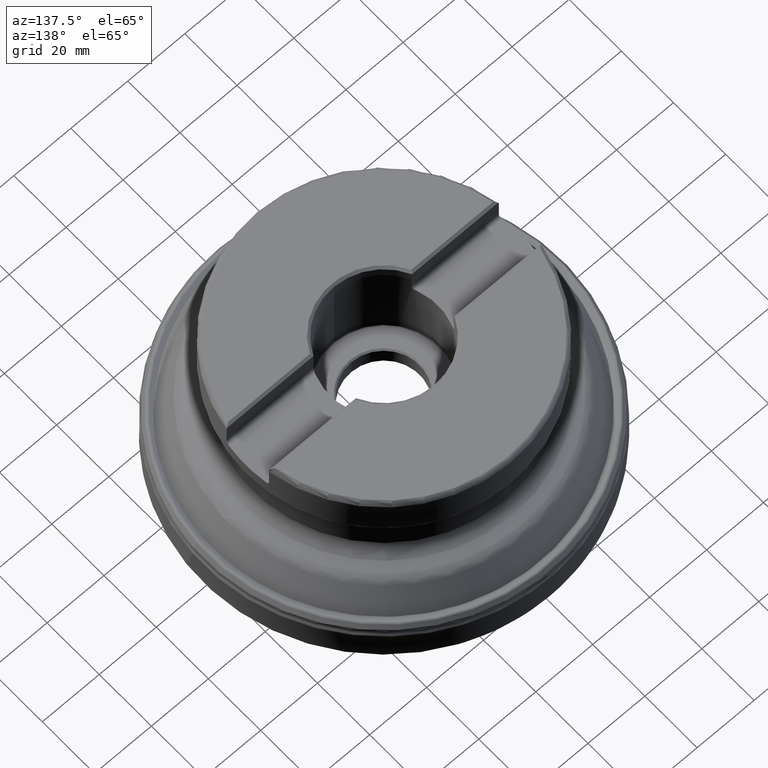
[diagram: clean part render]
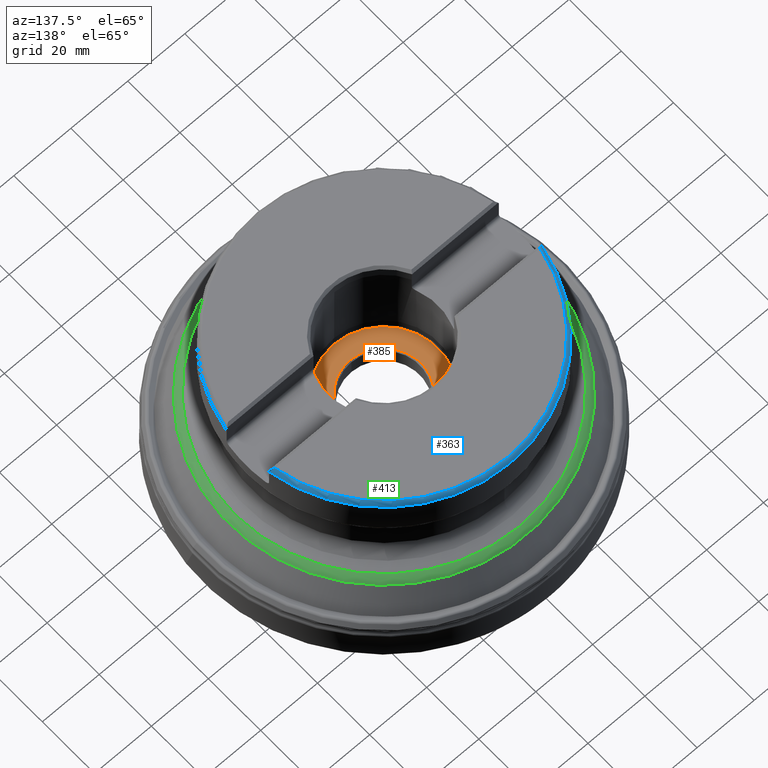
[diagram: same view with three faces highlighted in distinct colors, each labeled with its STEP entity id]
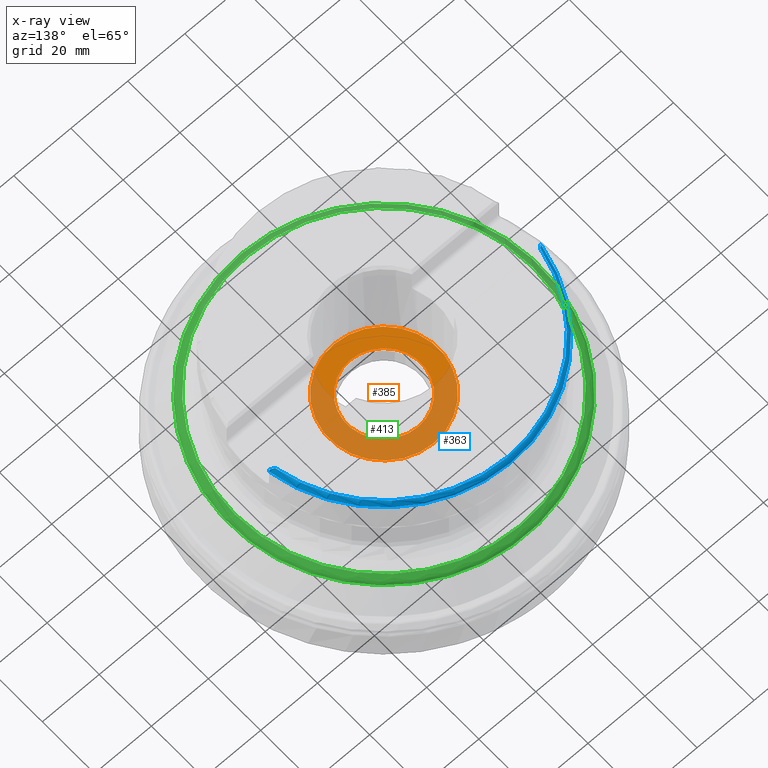
[diagram: x-ray of the same camera — body ghosted, the three highlighted faces saturated]
A machine part, auxiliary view with three faces highlighted in distinct colors.
The next image is the same camera in x-ray (body ghosted, the three faces saturated) — at least one of them is partly hidden behind the body in this view.
Their STEP definitions:

[orange] entity #385 — the highlighted planar face has unit normal (-0, -0, -1).
#176=PLANE('',#1275);
#280=FACE_BOUND('',#517,.T.);
#281=FACE_BOUND('',#518,.T.);
#385=ADVANCED_FACE('',(#280,#281),#176,.F.);
#517=EDGE_LOOP('',(#707));
#518=EDGE_LOOP('',(#708));
#707=ORIENTED_EDGE('',*,*,#1034,.T.);
#708=ORIENTED_EDGE('',*,*,#1035,.T.);
#925=VERTEX_POINT('',#2271);
#926=VERTEX_POINT('',#2273);
#1034=EDGE_CURVE('',#925,#925,#1117,.T.);
#1035=EDGE_CURVE('',#926,#926,#1118,.T.);
#1117=CIRCLE('',#1273,19.15);
#1118=CIRCLE('',#1274,13.);
#1273=AXIS2_PLACEMENT_3D('',#2270,#1478,#1479);
#1274=AXIS2_PLACEMENT_3D('',#2272,#1480,#1481);
#1275=AXIS2_PLACEMENT_3D('',#2274,#1482,#1483);
#1478=DIRECTION('',(1.17145536458252E-15,1.17145536458252E-15,1.));
#1479=DIRECTION('',(0.,-1.,1.08703298755727E-15));
#1480=DIRECTION('',(-1.17145536458252E-15,-1.17145536458252E-15,-1.));
#1481=DIRECTION('',(0.,-1.,1.06752213906265E-15));
#1482=DIRECTION('',(-1.17145536458252E-15,-1.17145536458252E-15,-1.));
#1483=DIRECTION('',(0.,-1.,1.17267306976032E-15));
#2270=CARTESIAN_POINT('',(2.85052576774595E-14,2.85052576774595E-14,24.3332));
#2271=CARTESIAN_POINT('',(2.85052576774595E-14,-19.15,24.3332));
#2272=CARTESIAN_POINT('',(2.85052576774595E-14,2.85052576774595E-14,24.3332));
#2273=CARTESIAN_POINT('',(2.85052576774595E-14,-13.,24.3332));
#2274=CARTESIAN_POINT('',(12.5,2.85052576774595E-14,24.3332));

[blue] entity #363 — the highlighted toroidal blend (fillet) surface has major radius 46.5 mm and minor (blend) radius 2 mm.
#363=ADVANCED_FACE('',(#458),#441,.T.);
#441=TOROIDAL_SURFACE('',#1213,46.5,2.);
#458=FACE_OUTER_BOUND('',#480,.T.);
#480=EDGE_LOOP('',(#619,#620,#621,#622,#623,#624));
#619=ORIENTED_EDGE('',*,*,#960,.T.);
#620=ORIENTED_EDGE('',*,*,#961,.T.);
#621=ORIENTED_EDGE('',*,*,#962,.T.);
#622=ORIENTED_EDGE('',*,*,#963,.T.);
#623=ORIENTED_EDGE('',*,*,#964,.T.);
#624=ORIENTED_EDGE('',*,*,#965,.F.);
#861=VERTEX_POINT('',#1940);
#862=VERTEX_POINT('',#1941);
#863=VERTEX_POINT('',#1949);
#864=VERTEX_POINT('',#1951);
#865=VERTEX_POINT('',#1959);
#866=VERTEX_POINT('',#1970);
#960=EDGE_CURVE('',#861,#862,#1165,.T.);
#961=EDGE_CURVE('',#862,#863,#1166,.T.);
#962=EDGE_CURVE('',#863,#864,#1077,.T.);
#963=EDGE_CURVE('',#864,#865,#1167,.T.);
#964=EDGE_CURVE('',#865,#866,#1168,.T.);
#965=EDGE_CURVE('',#861,#866,#1078,.T.);
#1077=CIRCLE('',#1211,47.3717797887081);
#1078=CIRCLE('',#1212,48.5);
#1165=B_SPLINE_CURVE_WITH_KNOTS('',3,(#1930,#1931,#1932,#1933,#1934,#1935,
#1936,#1937,#1938,#1939),.UNSPECIFIED.,.F.,.F.,(4,3,3,4),(0.,0.449401246265822,
0.831370419215527,1.),.UNSPECIFIED.);
#1166=B_SPLINE_CURVE_WITH_KNOTS('',3,(#1942,#1943,#1944,#1945,#1946,#1947,
#1948),.UNSPECIFIED.,.F.,.F.,(4,3,4),(0.,0.660782542297122,1.),
 .UNSPECIFIED.);
#1167=B_SPLINE_CURVE_WITH_KNOTS('',3,(#1952,#1953,#1954,#1955,#1956,#1957,
#1958),.UNSPECIFIED.,.F.,.F.,(4,3,4),(0.,0.668066726000924,1.),
 .UNSPECIFIED.);
#1168=B_SPLINE_CURVE_WITH_KNOTS('',3,(#1960,#1961,#1962,#1963,#1964,#1965,
#1966,#1967,#1968,#1969),.UNSPECIFIED.,.F.,.F.,(4,3,3,4),(0.,0.176331021509589,
0.820487325840416,1.),.UNSPECIFIED.);
#1211=AXIS2_PLACEMENT_3D('',#1950,#1338,#1339);
#1212=AXIS2_PLACEMENT_3D('',#1971,#1340,#1341);
#1213=AXIS2_PLACEMENT_3D('',#1972,#1342,#1343);
#1338=DIRECTION('',(0.,-1.17145536458252E-15,-1.));
#1339=DIRECTION('',(0.,-1.,1.17181899178907E-15));
#1340=DIRECTION('',(0.,-1.17145536458252E-15,-1.));
#1341=DIRECTION('',(0.,-1.,1.14455981920119E-15));
#1342=DIRECTION('',(0.,1.17145536458252E-15,1.));
#1343=DIRECTION('',(0.,-1.,1.14455981920119E-15));
#1930=CARTESIAN_POINT('',(-47.8120319584997,8.14000000000007,58.5249999999993));
#1931=CARTESIAN_POINT('',(-47.8120319584997,8.14000000000007,58.6811455727631));
#1932=CARTESIAN_POINT('',(-47.7932137818161,8.14000000000007,58.8383770359991));
#1933=CARTESIAN_POINT('',(-47.7564055792145,8.14000000000007,58.9901222043406));
#1934=CARTESIAN_POINT('',(-47.724870935823,8.14000000000007,59.1201266444327));
#1935=CARTESIAN_POINT('',(-47.6798368856416,8.14000000000007,59.2475537540405));
#1936=CARTESIAN_POINT('',(-47.6227451805058,8.14000000000007,59.3685336093147));
#1937=CARTESIAN_POINT('',(-47.5975792405139,8.14000000000007,59.4218613522997));
#1938=CARTESIAN_POINT('',(-47.5700091829628,8.14000000000007,59.4741187216278));
#1939=CARTESIAN_POINT('',(-47.5402053540369,8.14000000000007,59.5250000000011));
#1940=CARTESIAN_POINT('',(-47.8120319584997,8.14000000000007,58.5249999999993));
#1941=CARTESIAN_POINT('',(-47.5402053540369,8.14000000000007,59.5250000000011));
#1942=CARTESIAN_POINT('',(-47.5402053540369,8.14000000000007,59.5250000000011));
#1943=CARTESIAN_POINT('',(-47.3810846976297,8.35020572280937,59.7352057228104));
#1944=CARTESIAN_POINT('',(-47.1776925283572,8.54783722542941,59.9328372254293));
#1945=CARTESIAN_POINT('',(-46.9339168537292,8.71255773957184,60.0975577395718));
#1946=CARTESIAN_POINT('',(-46.8076935581482,8.79784748875042,60.1828474887503));
#1947=CARTESIAN_POINT('',(-46.6691825865688,8.87522936938679,60.2602293693867));
#1948=CARTESIAN_POINT('',(-46.5205537407914,8.94000000000007,60.325));
#1949=CARTESIAN_POINT('',(-46.5205537407914,8.94000000000007,60.325));
#1950=CARTESIAN_POINT('',(0.,7.06680448684408E-14,60.325));
#1951=CARTESIAN_POINT('',(46.5205537407914,8.94000000000007,60.325));
#1952=CARTESIAN_POINT('',(46.5205537407914,8.94000000000007,60.325));
#1953=CARTESIAN_POINT('',(46.8101208384357,8.81381020540689,60.1988102054068));
#1954=CARTESIAN_POINT('',(47.0618405703566,8.63947293801078,60.0244729380107));
#1955=CARTESIAN_POINT('',(47.2652783584163,8.44671674622115,59.8317167462211));
#1956=CARTESIAN_POINT('',(47.3676627293647,8.34970811458489,59.7347081145848));
#1957=CARTESIAN_POINT('',(47.4594216320255,8.24671902102378,59.6317190210237));
#1958=CARTESIAN_POINT('',(47.5402053540359,8.14000000000007,59.525));
#1959=CARTESIAN_POINT('',(47.5402053540359,8.14000000000007,59.525));
#1960=CARTESIAN_POINT('',(47.5402053540359,8.14000000000007,59.525));
#1961=CARTESIAN_POINT('',(47.5714053669161,8.14000000000007,59.4717351478712));
#1962=CARTESIAN_POINT('',(47.6001584602119,8.14000000000007,59.4169593822461));
#1963=CARTESIAN_POINT('',(47.6262699307819,8.14000000000007,59.361023916031));
#1964=CARTESIAN_POINT('',(47.7209341387211,8.14000000000007,59.1582361568825));
#1965=CARTESIAN_POINT('',(47.7816447019149,8.14000000000007,58.9360939923211));
#1966=CARTESIAN_POINT('',(47.8030180405361,8.14000000000007,58.7133219834838));
#1967=CARTESIAN_POINT('',(47.8090200783926,8.14000000000007,58.6507633886802));
#1968=CARTESIAN_POINT('',(47.8120319584973,8.14000000000007,58.5878458609798));
#1969=CARTESIAN_POINT('',(47.8120319584973,8.14000000000007,58.5250000000004));
#1970=CARTESIAN_POINT('',(47.8120319584973,8.14000000000007,58.5250000000004));
#1971=CARTESIAN_POINT('',(0.,6.85594252121922E-14,58.525));
#1972=CARTESIAN_POINT('',(0.,6.85594252121922E-14,58.525));

[green] entity #413 — the highlighted toroidal blend (fillet) surface has major radius 50.2368 mm and minor (blend) radius 5 mm.
#308=FACE_BOUND('',#559,.T.);
#309=FACE_BOUND('',#560,.T.);
#413=ADVANCED_FACE('',(#308,#309),#451,.T.);
#451=TOROIDAL_SURFACE('',#1307,50.2367828160623,5.);
#559=EDGE_LOOP('',(#801));
#560=EDGE_LOOP('',(#802));
#801=ORIENTED_EDGE('',*,*,#995,.F.);
#802=ORIENTED_EDGE('',*,*,#997,.F.);
#892=VERTEX_POINT('',#2097);
#894=VERTEX_POINT('',#2102);
#995=EDGE_CURVE('',#892,#892,#1096,.T.);
#997=EDGE_CURVE('',#894,#894,#1098,.T.);
#1096=CIRCLE('',#1240,54.5669098349844);
#1098=CIRCLE('',#1243,52.2704660314413);
#1240=AXIS2_PLACEMENT_3D('',#2096,#1404,#1405);
#1243=AXIS2_PLACEMENT_3D('',#2101,#1410,#1411);
#1307=AXIS2_PLACEMENT_3D('',#2344,#1554,#1555);
#1404=DIRECTION('',(0.,-1.17145536458252E-15,-1.));
#1405=DIRECTION('',(0.,-1.,1.14446732138617E-15));
#1410=DIRECTION('',(0.,1.17145536458252E-15,1.));
#1411=DIRECTION('',(0.,-1.,1.19474819867878E-15));
#1554=DIRECTION('',(0.,-1.17145536458252E-15,-1.));
#1555=DIRECTION('',(0.,1.,-1.19339846975936E-15));
#2096=CARTESIAN_POINT('',(0.,2.79783809853684E-14,23.8834375011285));
#2097=CARTESIAN_POINT('',(0.,-54.5669098349844,23.8834375011286));
#2101=CARTESIAN_POINT('',(0.,3.04006312096392E-14,25.9511647893415));
#2102=CARTESIAN_POINT('',(0.,-52.2704660314412,25.9511647893415));
#2344=CARTESIAN_POINT('',(0.,2.50497425739121E-14,21.3834375011285));